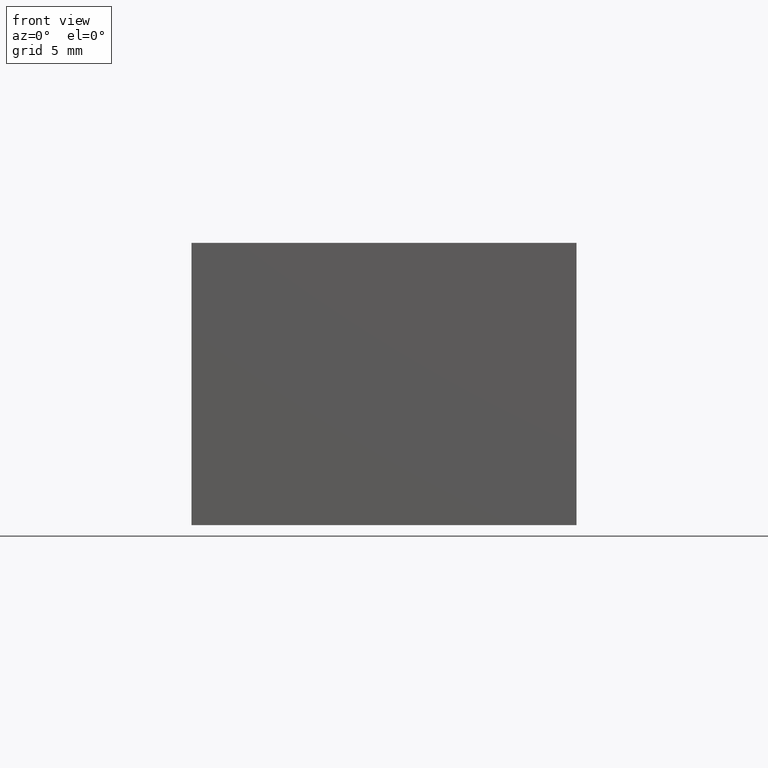
[diagram: clean part render]
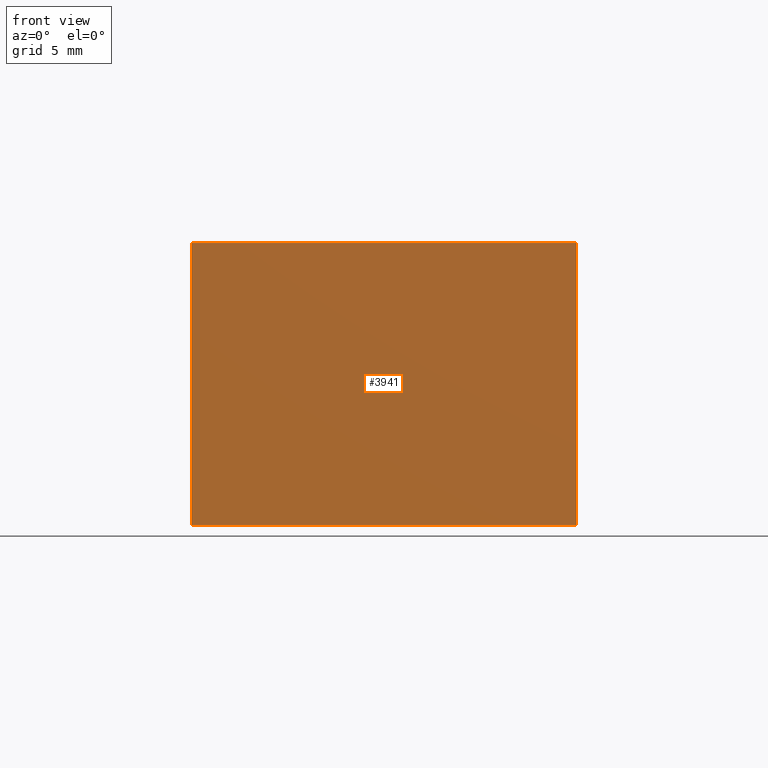
[diagram: same view with one face highlighted and labeled with its STEP entity id]
A machine part, front view. The second image highlights one B-rep face of the part: STEP entity #3941.
In plain terms, the highlighted planar face has unit normal (0, -1, 0).
Its self-contained STEP definition (entity closure, byte-faithful):
#478=FACE_OUTER_BOUND('',#713,.T.);
#713=EDGE_LOOP('',(#3565,#3566,#3567,#3568));
#1124=LINE('',#9843,#1537);
#1125=LINE('',#9851,#1538);
#1126=LINE('',#9852,#1539);
#1127=LINE('',#9853,#1540);
#1537=VECTOR('',#4793,30.);
#1538=VECTOR('',#4804,30.);
#1539=VECTOR('',#4805,22.);
#1540=VECTOR('',#4806,22.);
#1912=VERTEX_POINT('',#9836);
#1915=VERTEX_POINT('',#9841);
#1916=VERTEX_POINT('',#9849);
#1917=VERTEX_POINT('',#9850);
#2470=EDGE_CURVE('',#1915,#1912,#1124,.T.);
#2471=EDGE_CURVE('',#1916,#1917,#1125,.T.);
#2472=EDGE_CURVE('',#1917,#1912,#1126,.T.);
#2473=EDGE_CURVE('',#1916,#1915,#1127,.T.);
#3565=ORIENTED_EDGE('',*,*,#2471,.T.);
#3566=ORIENTED_EDGE('',*,*,#2472,.T.);
#3567=ORIENTED_EDGE('',*,*,#2470,.F.);
#3568=ORIENTED_EDGE('',*,*,#2473,.F.);
#3730=PLANE('',#4095);
#3941=ADVANCED_FACE('',(#478),#3730,.T.);
#4095=AXIS2_PLACEMENT_3D('',#9848,#4802,#4803);
#4793=DIRECTION('',(0.,-1.,0.));
#4802=DIRECTION('center_axis',(-1.,0.,0.));
#4803=DIRECTION('ref_axis',(0.,-1.,0.));
#4804=DIRECTION('',(0.,-1.,0.));
#4805=DIRECTION('',(0.,0.,1.));
#4806=DIRECTION('',(0.,0.,1.));
#9836=CARTESIAN_POINT('',(0.,0.,22.));
#9841=CARTESIAN_POINT('',(0.,30.,22.));
#9843=CARTESIAN_POINT('',(0.,30.,22.));
#9848=CARTESIAN_POINT('Origin',(0.,30.,0.));
#9849=CARTESIAN_POINT('',(0.,30.,0.));
#9850=CARTESIAN_POINT('',(0.,0.,0.));
#9851=CARTESIAN_POINT('',(0.,30.,0.));
#9852=CARTESIAN_POINT('',(0.,0.,0.));
#9853=CARTESIAN_POINT('',(0.,30.,0.));